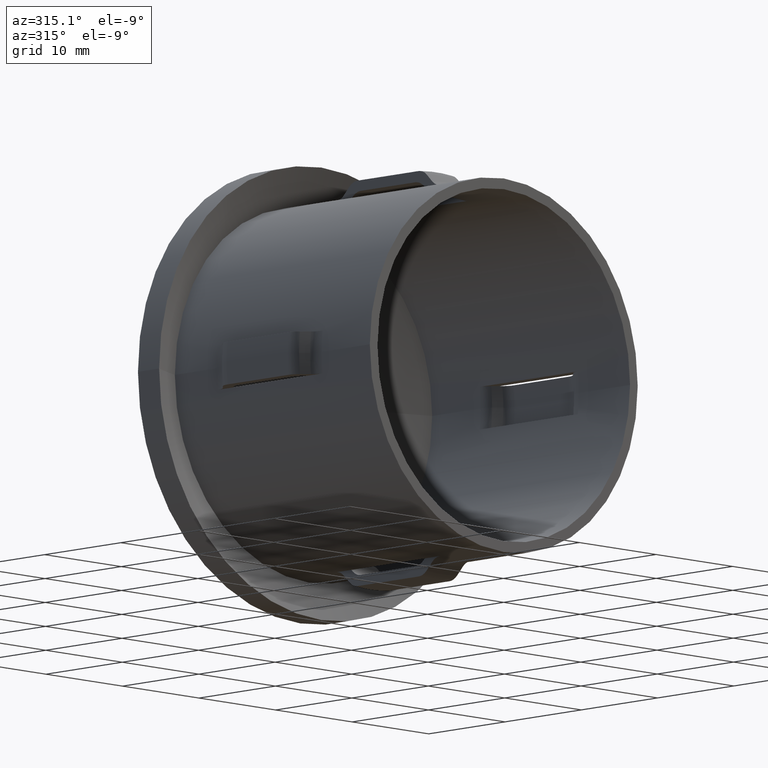
[diagram: clean part render]
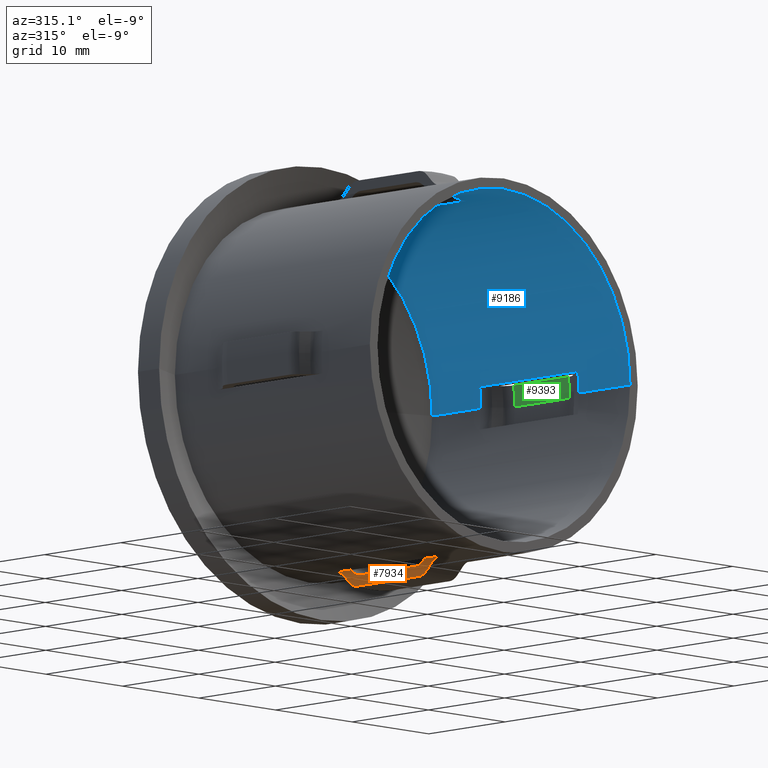
[diagram: same view with three faces highlighted in distinct colors, each labeled with its STEP entity id]
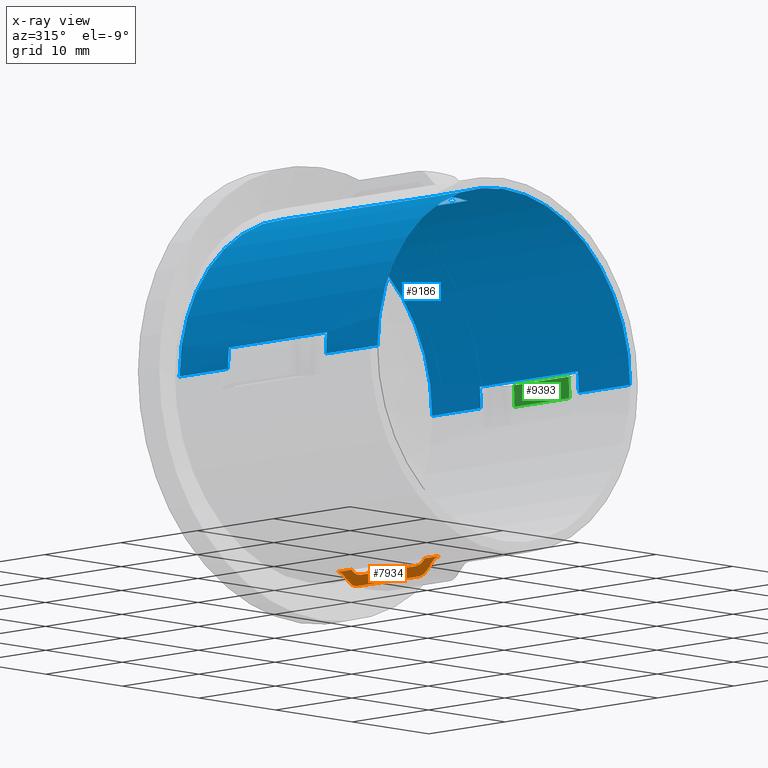
[diagram: x-ray of the same camera — body ghosted, the three highlighted faces saturated]
A machine part, auxiliary view with three faces highlighted in distinct colors.
The next image is the same camera in x-ray (body ghosted, the three faces saturated) — at least one of them is partly hidden behind the body in this view.
Their STEP definitions:

[orange] entity #7934 — the highlighted planar face has unit normal (-1, 0, -0).
#142 = CARTESIAN_POINT ( 'NONE',  ( -1.999999999999997300, 17.66617639867299500, -17.68556931965884600 ) ) ;
#319 = CARTESIAN_POINT ( 'NONE',  ( -1.999999999999997300, 17.86062099140061600, -17.48986456204517700 ) ) ;
#340 = B_SPLINE_CURVE_WITH_KNOTS ( 'NONE', 3,
 ( #2303, #3480, #12074, #1609, #5769, #12159, #472 ),
 .UNSPECIFIED., .F., .F.,
 ( 4, 3, 4 ),
 ( 0.002717514562751353200, 0.002881481620209133200, 0.003740695040385907800 ),
 .UNSPECIFIED. ) ;
#472 = CARTESIAN_POINT ( 'NONE',  ( -1.999999999999997300, 18.93933982822023800, -17.82750440954560000 ) ) ;
#527 = EDGE_CURVE ( 'NONE', #7886, #5952, #12152, .T. ) ;
#547 = DIRECTION ( 'NONE',  ( -2.449293598294745400E-017, -1.000000000000000000, -0.0000000000000000000 ) ) ;
#803 = ORIENTED_EDGE ( 'NONE', *, *, #6664, .F. ) ;
#865 = CARTESIAN_POINT ( 'NONE',  ( -1.999999999999997800, 9.179818459428762600, -17.95027609387195300 ) ) ;
#1187 = CARTESIAN_POINT ( 'NONE',  ( -1.999999999999997300, 6.511921298075495900, -17.38533865071377300 ) ) ;
#1213 = VERTEX_POINT ( 'NONE', #12375 ) ;
#1247 = VERTEX_POINT ( 'NONE', #13346 ) ;
#1524 = B_SPLINE_CURVE_WITH_KNOTS ( 'NONE', 3,
 ( #3696, #1603, #2654, #9957, #11065, #13122, #8875 ),
 .UNSPECIFIED., .F., .F.,
 ( 4, 3, 4 ),
 ( 0.002502640256380174500, 0.002881481711007974700, 0.003525820694122489300 ),
 .UNSPECIFIED. ) ;
#1603 = CARTESIAN_POINT ( 'NONE',  ( -1.999999999999997800, 7.464392951745988800, -17.91707696693311300 ) ) ;
#1609 = CARTESIAN_POINT ( 'NONE',  ( -1.999999999999997300, 18.33362423634514800, -18.43689454692427200 ) ) ;
#1630 = LINE ( 'NONE', #9995, #13504 ) ;
#1638 = VERTEX_POINT ( 'NONE', #3899 ) ;
#1702 = CARTESIAN_POINT ( 'NONE',  ( -1.999999999999997300, 19.07835158641513100, -17.68762060342850300 ) ) ;
#1881 = CARTESIAN_POINT ( 'NONE',  ( -1.999999999999997800, 8.510912703474037500, -17.54704868925519500 ) ) ;
#1993 = VERTEX_POINT ( 'NONE', #11931 ) ;
#2050 = VERTEX_POINT ( 'NONE', #4009 ) ;
#2298 = VERTEX_POINT ( 'NONE', #12782 ) ;
#2303 = CARTESIAN_POINT ( 'NONE',  ( -1.999999999999997300, 18.21801948466175200, -18.55317326083830700 ) ) ;
#2336 = EDGE_CURVE ( 'NONE', #8371, #10444, #12878, .T. ) ;
#2370 = B_SPLINE_CURVE_WITH_KNOTS ( 'NONE', 3,
 ( #11540, #3072, #12372, #9447, #5105, #8346 ),
 .UNSPECIFIED., .F., .F.,
 ( 4, 2, 4 ),
 ( 0.009058246311685884400, 0.009644235711769731000, 0.01023022511185357800 ),
 .UNSPECIFIED. ) ;
#2469 = ORIENTED_EDGE ( 'NONE', *, *, #9874, .F. ) ;
#2654 = CARTESIAN_POINT ( 'NONE',  ( -1.999999999999997800, 7.553411300389698500, -18.00664535620846600 ) ) ;
#2832 = CARTESIAN_POINT ( 'NONE',  ( -1.999999999999997300, 18.21801948466175200, -18.55317326083830700 ) ) ;
#2885 = CARTESIAN_POINT ( 'NONE',  ( -1.999999999999997800, 17.55228834799383000, -18.95497577591445900 ) ) ;
#2915 = EDGE_LOOP ( 'NONE', ( #5969, #10619, #7212, #6825, #2469, #4573, #7401, #10200, #10511, #9681, #6750, #4957, #8843, #803 ) ) ;
#2962 = CARTESIAN_POINT ( 'NONE',  ( -1.999999999999997800, 8.419481924227350000, -17.45502326312328400 ) ) ;
#3072 = CARTESIAN_POINT ( 'NONE',  ( -1.999999999999997300, 8.235885219230777200, -18.69316570677149900 ) ) ;
#3426 = EDGE_CURVE ( 'NONE', #2050, #1638, #340, .T. ) ;
#3427 = CARTESIAN_POINT ( 'NONE',  ( -1.999999999999997300, 17.80380592228749800, -17.54704868925516300 ) ) ;
#3480 = CARTESIAN_POINT ( 'NONE',  ( -1.999999999999997300, 18.25655510383300100, -18.51441438742118700 ) ) ;
#3616 = FACE_OUTER_BOUND ( 'NONE', #2915, .T. ) ;
#3692 = VERTEX_POINT ( 'NONE', #10656 ) ;
#3696 = CARTESIAN_POINT ( 'NONE',  ( -1.999999999999997800, 7.375378797541301000, -17.82750440954563900 ) ) ;
#3899 = CARTESIAN_POINT ( 'NONE',  ( -1.999999999999997300, 18.93933982822023800, -17.82750440954560000 ) ) ;
#4009 = CARTESIAN_POINT ( 'NONE',  ( -1.999999999999997300, 18.21801948466175200, -18.55317326083830700 ) ) ;
#4078 = CARTESIAN_POINT ( 'NONE',  ( -1.999999999999997800, 8.491974147298870800, -17.52798751203519200 ) ) ;
#4539 = EDGE_CURVE ( 'NONE', #6476, #3692, #2370, .T. ) ;
#4544 = CARTESIAN_POINT ( 'NONE',  ( -1.999999999999997300, 20.00000000000000000, -17.38533865071380500 ) ) ;
#4573 = ORIENTED_EDGE ( 'NONE', *, *, #12138, .F. ) ;
#4647 = CARTESIAN_POINT ( 'NONE',  ( -1.999999999999997800, 8.510912703474037500, -17.54704868925519500 ) ) ;
#4723 = B_SPLINE_CURVE_WITH_KNOTS ( 'NONE', 3,
 ( #9807, #12931, #8679, #319, #10797, #8446, #5483 ),
 .UNSPECIFIED., .F., .F.,
 ( 4, 3, 4 ),
 ( 0.001391506068155366600, 0.001538847408787444100, 0.001619457434272498100 ),
 .UNSPECIFIED. ) ;
#4919 = CARTESIAN_POINT ( 'NONE',  ( -1.999999999999997300, 17.35545052147437100, -18.99499934193212200 ) ) ;
#4957 = ORIENTED_EDGE ( 'NONE', *, *, #7402, .F. ) ;
#5105 = CARTESIAN_POINT ( 'NONE',  ( -1.999999999999997800, 8.961835131954593700, -18.99499934193213900 ) ) ;
#5113 = B_SPLINE_CURVE_WITH_KNOTS ( 'NONE', 3,
 ( #11185, #4919, #2885, #11359, #10267, #2832 ),
 .UNSPECIFIED., .F., .F.,
 ( 4, 2, 4 ),
 ( 0.009110308732903648500, 0.009696500257975483200, 0.01028269178304731800 ),
 .UNSPECIFIED. ) ;
#5368 = CARTESIAN_POINT ( 'NONE',  ( -1.999999999999997300, 8.096699141100950600, -18.55317326083740800 ) ) ;
#5483 = CARTESIAN_POINT ( 'NONE',  ( -1.999999999999997300, 17.80380592228749800, -17.54704868925516300 ) ) ;
#5525 = CARTESIAN_POINT ( 'NONE',  ( -1.999999999999998200, 6.707255492531323200, -17.42454143816082300 ) ) ;
#5538 = EDGE_CURVE ( 'NONE', #1213, #3692, #1630, .T. ) ;
#5722 = PLANE ( 'NONE',  #10632 ) ;
#5769 = CARTESIAN_POINT ( 'NONE',  ( -1.999999999999997300, 18.53554961556706400, -18.23378456336042300 ) ) ;
#5952 = VERTEX_POINT ( 'NONE', #7087 ) ;
#5969 = ORIENTED_EDGE ( 'NONE', *, *, #3426, .F. ) ;
#5974 = VECTOR ( 'NONE', #11989, 1000.000000000000000 ) ;
#6017 = CARTESIAN_POINT ( 'NONE',  ( -1.999999999999997300, 16.74314575050790700, -17.98916340467448900 ) ) ;
#6192 = CARTESIAN_POINT ( 'NONE',  ( -1.999999999999997800, 8.648696931519925400, -17.68572502575156600 ) ) ;
#6362 = EDGE_CURVE ( 'NONE', #11612, #2298, #12008, .T. ) ;
#6476 = VERTEX_POINT ( 'NONE', #5368 ) ;
#6664 = EDGE_CURVE ( 'NONE', #1638, #8371, #13508, .T. ) ;
#6750 = ORIENTED_EDGE ( 'NONE', *, *, #6961, .F. ) ;
#6825 = ORIENTED_EDGE ( 'NONE', *, *, #4539, .F. ) ;
#6902 = CARTESIAN_POINT ( 'NONE',  ( -1.999999999999997300, 18.93933982822023800, -17.82750440954560000 ) ) ;
#6941 = CARTESIAN_POINT ( 'NONE',  ( -1.999999999999997800, 19.80275522031461600, -17.38533865071373800 ) ) ;
#6961 = EDGE_CURVE ( 'NONE', #7448, #11612, #9808, .T. ) ;
#7087 = CARTESIAN_POINT ( 'NONE',  ( -1.999999999999997800, 8.350252531694247100, -17.38533865071380500 ) ) ;
#7133 = CARTESIAN_POINT ( 'NONE',  ( -1.999999999999997800, 8.454097634360859800, -17.48986456204514500 ) ) ;
#7212 = ORIENTED_EDGE ( 'NONE', *, *, #5538, .T. ) ;
#7401 = ORIENTED_EDGE ( 'NONE', *, *, #10132, .F. ) ;
#7402 = EDGE_CURVE ( 'NONE', #10444, #7448, #4723, .T. ) ;
#7448 = VERTEX_POINT ( 'NONE', #7835 ) ;
#7522 = CARTESIAN_POINT ( 'NONE',  ( -1.999999999999997300, 16.74314575050790700, -17.98916340467448900 ) ) ;
#7608 = B_SPLINE_CURVE_WITH_KNOTS ( 'NONE', 3,
 ( #8406, #10513, #865, #13446, #6192, #1881 ),
 .UNSPECIFIED., .F., .F.,
 ( 4, 2, 4 ),
 ( 0.008557415240390565600, 0.009143349752370274000, 0.009729284264349982400 ),
 .UNSPECIFIED. ) ;
#7632 = CARTESIAN_POINT ( 'NONE',  ( -1.999999999999997300, 20.00000000000000000, -17.38533865071380500 ) ) ;
#7704 = CARTESIAN_POINT ( 'NONE',  ( -1.999999999999997800, 16.93896679461473600, -17.98916340467229300 ) ) ;
#7784 = DIRECTION ( 'NONE',  ( -2.449293598294745400E-017, -1.000000000000000000, -0.0000000000000000000 ) ) ;
#7835 = CARTESIAN_POINT ( 'NONE',  ( -1.999999999999997300, 17.80380592228749800, -17.54704868925516300 ) ) ;
#7886 = VERTEX_POINT ( 'NONE', #4647 ) ;
#7934 = ADVANCED_FACE ( 'NONE', ( #3616 ), #5722, .T. ) ;
#8163 = DIRECTION ( 'NONE',  ( -2.904862207577519400E-015, -1.000000000000000000, -0.0000000000000000000 ) ) ;
#8346 = CARTESIAN_POINT ( 'NONE',  ( -1.999999999999997800, 9.157359312880760900, -18.99499934193216400 ) ) ;
#8371 = VERTEX_POINT ( 'NONE', #4544 ) ;
#8406 = CARTESIAN_POINT ( 'NONE',  ( -2.000000000000052800, 9.571572875253807000, -17.98916340467231500 ) ) ;
#8446 = CARTESIAN_POINT ( 'NONE',  ( -1.999999999999997300, 17.82274447846264600, -17.52798751203518500 ) ) ;
#8586 = CARTESIAN_POINT ( 'NONE',  ( -1.999999999999997100, 7.071031530395205600, -17.57632696097569500 ) ) ;
#8630 = CARTESIAN_POINT ( 'NONE',  ( -1.999999999999997800, 7.375378797541301000, -17.82750440954563900 ) ) ;
#8677 = CARTESIAN_POINT ( 'NONE',  ( -1.999999999999997800, 7.236001098021193700, -17.68725236648188900 ) ) ;
#8679 = CARTESIAN_POINT ( 'NONE',  ( -1.999999999999997300, 17.89523670153413400, -17.45502326312330500 ) ) ;
#8843 = ORIENTED_EDGE ( 'NONE', *, *, #2336, .F. ) ;
#8875 = CARTESIAN_POINT ( 'NONE',  ( -1.999999999999997300, 8.096699141100950600, -18.55317326083740800 ) ) ;
#8964 = DIRECTION ( 'NONE',  ( -1.000000000000000000, 2.449293598294745400E-017, -7.655443703210460400E-017 ) ) ;
#9009 = CARTESIAN_POINT ( 'NONE',  ( -1.999999999999998700, 20.00000000000000000, -1.531088740642091600E-016 ) ) ;
#9111 = CARTESIAN_POINT ( 'NONE',  ( -1.999999999999997300, 20.00000000000000000, -17.38533865071380500 ) ) ;
#9300 = CARTESIAN_POINT ( 'NONE',  ( -1.999999999999997800, 8.473035790276684400, -17.50892613694125900 ) ) ;
#9344 = CARTESIAN_POINT ( 'NONE',  ( -1.999999999999997800, 8.510912703474037500, -17.54704868925519500 ) ) ;
#9447 = CARTESIAN_POINT ( 'NONE',  ( -1.999999999999997300, 8.764459677352842700, -18.95551127229821000 ) ) ;
#9681 = ORIENTED_EDGE ( 'NONE', *, *, #6362, .F. ) ;
#9807 = CARTESIAN_POINT ( 'NONE',  ( -1.999999999999997300, 17.96446609406725900, -17.38533865071380500 ) ) ;
#9808 = B_SPLINE_CURVE_WITH_KNOTS ( 'NONE', 3,
 ( #3427, #142, #10846, #12891, #7704, #7522 ),
 .UNSPECIFIED., .F., .F.,
 ( 4, 2, 4 ),
 ( 0.008379490991793154400, 0.008965262327657017700, 0.009551033663520881000 ),
 .UNSPECIFIED. ) ;
#9867 = DIRECTION ( 'NONE',  ( -7.655443703210460400E-017, 0.0000000000000000000, 1.000000000000000000 ) ) ;
#9874 = EDGE_CURVE ( 'NONE', #1993, #6476, #1524, .T. ) ;
#9957 = CARTESIAN_POINT ( 'NONE',  ( -1.999999999999997800, 7.642433659921811000, -18.09620975867419900 ) ) ;
#9995 = CARTESIAN_POINT ( 'NONE',  ( -1.999999999999997300, 20.00000000000000000, -18.99499934193216400 ) ) ;
#10056 = EDGE_CURVE ( 'NONE', #2298, #7886, #7608, .T. ) ;
#10132 = EDGE_CURVE ( 'NONE', #5952, #1247, #10835, .T. ) ;
#10195 = CARTESIAN_POINT ( 'NONE',  ( -1.999999999999997300, 19.60781667816409900, -17.42437800737897600 ) ) ;
#10200 = ORIENTED_EDGE ( 'NONE', *, *, #527, .F. ) ;
#10267 = CARTESIAN_POINT ( 'NONE',  ( -1.999999999999997800, 18.07980049139986500, -18.69219301914309000 ) ) ;
#10294 = CARTESIAN_POINT ( 'NONE',  ( -1.999999999999997800, 8.350252531694247100, -17.38533865071380500 ) ) ;
#10341 = CARTESIAN_POINT ( 'NONE',  ( -1.999999999999997800, 8.384866885954853200, -17.42018129667720300 ) ) ;
#10444 = VERTEX_POINT ( 'NONE', #10496 ) ;
#10496 = CARTESIAN_POINT ( 'NONE',  ( -1.999999999999997300, 17.96446609406725900, -17.38533865071380500 ) ) ;
#10511 = ORIENTED_EDGE ( 'NONE', *, *, #10056, .F. ) ;
#10513 = CARTESIAN_POINT ( 'NONE',  ( -1.999999999999997300, 9.374426846787924800, -17.98916340467233300 ) ) ;
#10619 = ORIENTED_EDGE ( 'NONE', *, *, #12773, .F. ) ;
#10632 = AXIS2_PLACEMENT_3D ( 'NONE', #9009, #8964, #9867 ) ;
#10656 = CARTESIAN_POINT ( 'NONE',  ( -1.999999999999997800, 9.157359312880760900, -18.99499934193216400 ) ) ;
#10745 = CARTESIAN_POINT ( 'NONE',  ( -1.999999999999997800, 6.314718625761422300, -17.38533865071380500 ) ) ;
#10797 = CARTESIAN_POINT ( 'NONE',  ( -1.999999999999997300, 17.84168283548481100, -17.50892613694127300 ) ) ;
#10835 = LINE ( 'NONE', #10881, #13458 ) ;
#10846 = CARTESIAN_POINT ( 'NONE',  ( -1.999999999999997800, 17.49967531331978400, -17.79791893002652600 ) ) ;
#10881 = CARTESIAN_POINT ( 'NONE',  ( -1.999999999999997300, 20.00000000000000000, -17.38533865071380500 ) ) ;
#11065 = CARTESIAN_POINT ( 'NONE',  ( -1.999999999999997800, 7.793844166108023300, -18.24854217925793200 ) ) ;
#11185 = CARTESIAN_POINT ( 'NONE',  ( -1.999999999999997300, 17.15735931288071100, -18.99499934193216400 ) ) ;
#11359 = CARTESIAN_POINT ( 'NONE',  ( -1.999999999999997300, 17.91300552684631600, -18.80433843613714700 ) ) ;
#11513 = VECTOR ( 'NONE', #8163, 1000.000000000000000 ) ;
#11540 = CARTESIAN_POINT ( 'NONE',  ( -1.999999999999997300, 8.096699141100950600, -18.55317326083740800 ) ) ;
#11612 = VERTEX_POINT ( 'NONE', #6017 ) ;
#11849 = B_SPLINE_CURVE_WITH_KNOTS ( 'NONE', 3,
 ( #10745, #1187, #5525, #8586, #8677, #8630 ),
 .UNSPECIFIED., .F., .F.,
 ( 4, 2, 4 ),
 ( 0.009260882988404802200, 0.009847264564994236800, 0.01043364614158367000 ),
 .UNSPECIFIED. ) ;
#11931 = CARTESIAN_POINT ( 'NONE',  ( -1.999999999999997800, 7.375378797541301000, -17.82750440954563900 ) ) ;
#11989 = DIRECTION ( 'NONE',  ( -2.449293598294745400E-017, -1.000000000000000000, -0.0000000000000000000 ) ) ;
#12008 = LINE ( 'NONE', #13294, #11513 ) ;
#12074 = CARTESIAN_POINT ( 'NONE',  ( -1.999999999999997300, 18.29509002547514700, -18.47565482047983600 ) ) ;
#12138 = EDGE_CURVE ( 'NONE', #1247, #1993, #11849, .T. ) ;
#12152 = B_SPLINE_CURVE_WITH_KNOTS ( 'NONE', 3,
 ( #9344, #4078, #9300, #7133, #2962, #10341, #10294 ),
 .UNSPECIFIED., .F., .F.,
 ( 4, 3, 4 ),
 ( 0.001458237375091891600, 0.001538847400985722100, 0.001686188742364757300 ),
 .UNSPECIFIED. ) ;
#12159 = CARTESIAN_POINT ( 'NONE',  ( -1.999999999999997300, 18.73745550058199800, -18.03065519701952700 ) ) ;
#12254 = CARTESIAN_POINT ( 'NONE',  ( -1.999999999999997800, 19.24312840865503200, -17.57657599610206100 ) ) ;
#12372 = CARTESIAN_POINT ( 'NONE',  ( -1.999999999999997800, 8.403729032305321300, -18.80548881121025700 ) ) ;
#12375 = CARTESIAN_POINT ( 'NONE',  ( -1.999999999999997300, 17.15735931288071100, -18.99499934193216400 ) ) ;
#12773 = EDGE_CURVE ( 'NONE', #1213, #2050, #5113, .T. ) ;
#12782 = CARTESIAN_POINT ( 'NONE',  ( -2.000000000000052800, 9.571572875253807000, -17.98916340467231500 ) ) ;
#12878 = LINE ( 'NONE', #7632, #5974 ) ;
#12891 = CARTESIAN_POINT ( 'NONE',  ( -1.999999999999997300, 17.13839461924656100, -17.94907361992870100 ) ) ;
#12931 = CARTESIAN_POINT ( 'NONE',  ( -1.999999999999997300, 17.92985173980664400, -17.42018129667721700 ) ) ;
#13122 = CARTESIAN_POINT ( 'NONE',  ( -1.999999999999997300, 7.945266271175104800, -18.40086307191202100 ) ) ;
#13294 = CARTESIAN_POINT ( 'NONE',  ( -1.999999999999997100, 28.89999999999999500, -17.98916340467231500 ) ) ;
#13346 = CARTESIAN_POINT ( 'NONE',  ( -1.999999999999997800, 6.314718625761422300, -17.38533865071380500 ) ) ;
#13446 = CARTESIAN_POINT ( 'NONE',  ( -1.999999999999997300, 8.814874382095519300, -17.79810545226449400 ) ) ;
#13458 = VECTOR ( 'NONE', #7784, 1000.000000000000000 ) ;
#13504 = VECTOR ( 'NONE', #547, 1000.000000000000000 ) ;
#13508 = B_SPLINE_CURVE_WITH_KNOTS ( 'NONE', 3,
 ( #6902, #1702, #12254, #10195, #6941, #9111 ),
 .UNSPECIFIED., .F., .F.,
 ( 4, 2, 4 ),
 ( 0.009288462586615883400, 0.009874882560755880700, 0.01046130253489587800 ),
 .UNSPECIFIED. ) ;

[blue] entity #9186 — the highlighted cylindrical surface (partial cylindrical patch) has radius 16.5 mm, axis along (-0, -1, -0).
#84 = LINE ( 'NONE', #207, #2383 ) ;
#126 = VERTEX_POINT ( 'NONE', #11928 ) ;
#161 = EDGE_CURVE ( 'NONE', #671, #9048, #10293, .T. ) ;
#207 = CARTESIAN_POINT ( 'NONE',  ( -16.50000000000001400, 28.90000000000004500, 2.020667218593134700E-015 ) ) ;
#271 = CARTESIAN_POINT ( 'NONE',  ( -6.440389698832633000E-014, 6.728932188134556300, 0.0000000000000000000 ) ) ;
#409 = EDGE_CURVE ( 'NONE', #3163, #10684, #4510, .T. ) ;
#530 = AXIS2_PLACEMENT_3D ( 'NONE', #9121, #2632, #10024 ) ;
#609 = VERTEX_POINT ( 'NONE', #11655 ) ;
#657 = CARTESIAN_POINT ( 'NONE',  ( 1.999999999999952700, 6.728932188134550100, 16.37833935415926200 ) ) ;
#671 = VERTEX_POINT ( 'NONE', #3336 ) ;
#823 = ORIENTED_EDGE ( 'NONE', *, *, #1724, .F. ) ;
#866 = CIRCLE ( 'NONE', #530, 16.50000000000002800 ) ;
#910 = VERTEX_POINT ( 'NONE', #13404 ) ;
#966 = DIRECTION ( 'NONE',  ( 1.000000000000000000, -2.943773171354576700E-015, 0.0000000000000000000 ) ) ;
#1062 = CARTESIAN_POINT ( 'NONE',  ( 16.50000000000001400, 28.89999999999994500, 0.0000000000000000000 ) ) ;
#1458 = DIRECTION ( 'NONE',  ( 1.000000000000000000, -2.891205793294667200E-015, 0.0000000000000000000 ) ) ;
#1515 = EDGE_CURVE ( 'NONE', #10684, #126, #866, .T. ) ;
#1578 = DIRECTION ( 'NONE',  ( -2.904862207577519400E-015, -1.000000000000000000, -0.0000000000000000000 ) ) ;
#1699 = AXIS2_PLACEMENT_3D ( 'NONE', #271, #2504, #3590 ) ;
#1724 = EDGE_CURVE ( 'NONE', #11598, #7661, #9609, .T. ) ;
#1763 = DIRECTION ( 'NONE',  ( -2.904862207577519400E-015, -1.000000000000000000, -0.0000000000000000000 ) ) ;
#2210 = CARTESIAN_POINT ( 'NONE',  ( -8.395051779899015700E-014, 4.857225732735059900E-014, 0.0000000000000000000 ) ) ;
#2288 = ORIENTED_EDGE ( 'NONE', *, *, #12522, .T. ) ;
#2383 = VECTOR ( 'NONE', #9878, 1000.000000000000000 ) ;
#2479 = ORIENTED_EDGE ( 'NONE', *, *, #409, .T. ) ;
#2504 = DIRECTION ( 'NONE',  ( -2.904862207577519400E-015, -1.000000000000000000, -0.0000000000000000000 ) ) ;
#2632 = DIRECTION ( 'NONE',  ( -2.904862207577519400E-015, -1.000000000000000000, -0.0000000000000000000 ) ) ;
#2635 = CARTESIAN_POINT ( 'NONE',  ( -1.999999999999997800, 19.58578643762693600, 16.37833935415929100 ) ) ;
#2657 = CARTESIAN_POINT ( 'NONE',  ( -16.37833935415936500, 20.00000000000000000, 1.999999999999995800 ) ) ;
#2740 = VERTEX_POINT ( 'NONE', #5008 ) ;
#2784 = DIRECTION ( 'NONE',  ( -2.449293598294745400E-017, -1.000000000000000000, 0.0000000000000000000 ) ) ;
#3130 = CARTESIAN_POINT ( 'NONE',  ( -16.50000000000005700, 19.58578643762700400, 2.020667218593136600E-015 ) ) ;
#3163 = VERTEX_POINT ( 'NONE', #4995 ) ;
#3183 = AXIS2_PLACEMENT_3D ( 'NONE', #3207, #10440, #4260 ) ;
#3207 = CARTESIAN_POINT ( 'NONE',  ( -6.440389698832633000E-014, 6.728932188134556300, 0.0000000000000000000 ) ) ;
#3221 = VERTEX_POINT ( 'NONE', #13321 ) ;
#3229 = DIRECTION ( 'NONE',  ( -2.904862207577519400E-015, -1.000000000000000000, -0.0000000000000000000 ) ) ;
#3336 = CARTESIAN_POINT ( 'NONE',  ( 16.49999999999999600, 6.420309023212971100E-016, 0.0000000000000000000 ) ) ;
#3458 = LINE ( 'NONE', #10084, #8745 ) ;
#3503 = CARTESIAN_POINT ( 'NONE',  ( -6.440389698832633000E-014, 6.728932188134556300, 0.0000000000000000000 ) ) ;
#3536 = VECTOR ( 'NONE', #1578, 1000.000000000000000 ) ;
#3590 = DIRECTION ( 'NONE',  ( 1.000000000000000000, -2.891205793294667200E-015, 0.0000000000000000000 ) ) ;
#3622 = CARTESIAN_POINT ( 'NONE',  ( 16.50000000000000000, 19.58578643762690800, 0.0000000000000000000 ) ) ;
#3866 = CARTESIAN_POINT ( 'NONE',  ( 0.0000000000000000000, 28.89999999999999500, 0.0000000000000000000 ) ) ;
#3889 = LINE ( 'NONE', #2657, #11139 ) ;
#3939 = DIRECTION ( 'NONE',  ( -2.449293598294745400E-017, -1.000000000000000000, 0.0000000000000000000 ) ) ;
#4044 = AXIS2_PLACEMENT_3D ( 'NONE', #3503, #8814, #1458 ) ;
#4085 = CIRCLE ( 'NONE', #10465, 16.50000000000002800 ) ;
#4142 = CARTESIAN_POINT ( 'NONE',  ( 16.37833935415919800, 20.00000000000000000, 1.999999999999995800 ) ) ;
#4260 = DIRECTION ( 'NONE',  ( 1.000000000000000000, -2.891205793294667200E-015, 0.0000000000000000000 ) ) ;
#4510 = LINE ( 'NONE', #8099, #3536 ) ;
#4516 = LINE ( 'NONE', #4142, #5344 ) ;
#4532 = VECTOR ( 'NONE', #3939, 1000.000000000000000 ) ;
#4865 = ORIENTED_EDGE ( 'NONE', *, *, #11184, .F. ) ;
#4995 = CARTESIAN_POINT ( 'NONE',  ( 16.49999999999999300, 25.94211490264017800, -2.020667218593116900E-015 ) ) ;
#5008 = CARTESIAN_POINT ( 'NONE',  ( -16.49999999999987600, 25.94211490264027000, 0.0000000000000000000 ) ) ;
#5009 = AXIS2_PLACEMENT_3D ( 'NONE', #5215, #7300, #966 ) ;
#5136 = EDGE_LOOP ( 'NONE', ( #10177, #6780, #823, #7780 ) ) ;
#5215 = CARTESIAN_POINT ( 'NONE',  ( -2.705650697064341700E-014, 19.58578643762695700, 0.0000000000000000000 ) ) ;
#5266 = CARTESIAN_POINT ( 'NONE',  ( -2.705650697064341700E-014, 19.58578643762695700, 0.0000000000000000000 ) ) ;
#5344 = VECTOR ( 'NONE', #10449, 1000.000000000000000 ) ;
#5363 = ORIENTED_EDGE ( 'NONE', *, *, #11520, .F. ) ;
#5631 = ORIENTED_EDGE ( 'NONE', *, *, #10212, .F. ) ;
#5767 = DIRECTION ( 'NONE',  ( -2.449293598294745400E-017, -1.000000000000000000, 0.0000000000000000000 ) ) ;
#5817 = CARTESIAN_POINT ( 'NONE',  ( 2.000000000000001800, 20.00000000000000000, 16.37833935415926900 ) ) ;
#5861 = LINE ( 'NONE', #1062, #10143 ) ;
#6103 = CARTESIAN_POINT ( 'NONE',  ( -16.37833935415925500, 19.58578643762700400, 1.999999999999994000 ) ) ;
#6344 = DIRECTION ( 'NONE',  ( -2.904862207577519400E-015, -1.000000000000000000, -0.0000000000000000000 ) ) ;
#6365 = EDGE_CURVE ( 'NONE', #10368, #7661, #3458, .T. ) ;
#6511 = CIRCLE ( 'NONE', #5009, 16.50000000000002800 ) ;
#6780 = ORIENTED_EDGE ( 'NONE', *, *, #6365, .T. ) ;
#7096 = VERTEX_POINT ( 'NONE', #9908 ) ;
#7156 = ORIENTED_EDGE ( 'NONE', *, *, #12988, .F. ) ;
#7300 = DIRECTION ( 'NONE',  ( -2.904862207577519400E-015, -1.000000000000000000, -0.0000000000000000000 ) ) ;
#7355 = LINE ( 'NONE', #13336, #8515 ) ;
#7500 = AXIS2_PLACEMENT_3D ( 'NONE', #2210, #9688, #12763 ) ;
#7661 = VERTEX_POINT ( 'NONE', #13387 ) ;
#7706 = CYLINDRICAL_SURFACE ( 'NONE', #13610, 16.50000000000001400 ) ;
#7780 = ORIENTED_EDGE ( 'NONE', *, *, #11558, .F. ) ;
#8099 = CARTESIAN_POINT ( 'NONE',  ( 16.50000000000001400, 28.89999999999994500, 0.0000000000000000000 ) ) ;
#8193 = AXIS2_PLACEMENT_3D ( 'NONE', #10424, #3229, #10516 ) ;
#8244 = VERTEX_POINT ( 'NONE', #9669 ) ;
#8515 = VECTOR ( 'NONE', #1763, 1000.000000000000000 ) ;
#8573 = EDGE_LOOP ( 'NONE', ( #4865, #9522, #2479, #10676, #2288, #7156, #13270, #10518, #5363, #5631, #11038, #12106 ) ) ;
#8745 = VECTOR ( 'NONE', #2784, 1000.000000000000000 ) ;
#8814 = DIRECTION ( 'NONE',  ( -2.904862207577519400E-015, -1.000000000000000000, -0.0000000000000000000 ) ) ;
#9048 = VERTEX_POINT ( 'NONE', #13247 ) ;
#9121 = CARTESIAN_POINT ( 'NONE',  ( -2.705650697064341700E-014, 19.58578643762695700, 0.0000000000000000000 ) ) ;
#9186 = ADVANCED_FACE ( 'NONE', ( #10519, #12144 ), #7706, .F. ) ;
#9484 = CIRCLE ( 'NONE', #4044, 16.50000000000006400 ) ;
#9522 = ORIENTED_EDGE ( 'NONE', *, *, #12047, .F. ) ;
#9609 = CIRCLE ( 'NONE', #3183, 16.50000000000006400 ) ;
#9669 = CARTESIAN_POINT ( 'NONE',  ( -16.50000000000012800, 6.728932188134604300, 2.020667218593143000E-015 ) ) ;
#9674 = EDGE_CURVE ( 'NONE', #3221, #10368, #4085, .T. ) ;
#9688 = DIRECTION ( 'NONE',  ( -2.904862207577519400E-015, -1.000000000000000000, -0.0000000000000000000 ) ) ;
#9878 = DIRECTION ( 'NONE',  ( -2.904862207577519400E-015, -1.000000000000000000, -0.0000000000000000000 ) ) ;
#9908 = CARTESIAN_POINT ( 'NONE',  ( 16.49999999999999600, 6.728932188134509200, 0.0000000000000000000 ) ) ;
#10022 = VERTEX_POINT ( 'NONE', #6103 ) ;
#10024 = DIRECTION ( 'NONE',  ( 1.000000000000000000, -2.943773171354576700E-015, 0.0000000000000000000 ) ) ;
#10065 = VERTEX_POINT ( 'NONE', #3130 ) ;
#10084 = CARTESIAN_POINT ( 'NONE',  ( -1.999999999999997800, 20.00000000000000000, 16.37833935415929100 ) ) ;
#10143 = VECTOR ( 'NONE', #10432, 1000.000000000000000 ) ;
#10177 = ORIENTED_EDGE ( 'NONE', *, *, #9674, .T. ) ;
#10212 = EDGE_CURVE ( 'NONE', #609, #8244, #13121, .T. ) ;
#10293 = CIRCLE ( 'NONE', #7500, 16.50000000000008200 ) ;
#10368 = VERTEX_POINT ( 'NONE', #2635 ) ;
#10424 = CARTESIAN_POINT ( 'NONE',  ( -8.592248633677158500E-015, 25.94211490264022000, 0.0000000000000000000 ) ) ;
#10432 = DIRECTION ( 'NONE',  ( -2.904862207577519400E-015, -1.000000000000000000, -0.0000000000000000000 ) ) ;
#10440 = DIRECTION ( 'NONE',  ( -2.904862207577519400E-015, -1.000000000000000000, -0.0000000000000000000 ) ) ;
#10449 = DIRECTION ( 'NONE',  ( -2.449293598294745400E-017, -1.000000000000000000, 0.0000000000000000000 ) ) ;
#10465 = AXIS2_PLACEMENT_3D ( 'NONE', #5266, #6344, #10480 ) ;
#10480 = DIRECTION ( 'NONE',  ( 1.000000000000000000, -2.943773171354576700E-015, 0.0000000000000000000 ) ) ;
#10516 = DIRECTION ( 'NONE',  ( 1.000000000000000000, -2.943773171354581800E-015, 0.0000000000000000000 ) ) ;
#10518 = ORIENTED_EDGE ( 'NONE', *, *, #161, .T. ) ;
#10519 = FACE_OUTER_BOUND ( 'NONE', #8573, .T. ) ;
#10650 = LINE ( 'NONE', #5817, #4532 ) ;
#10676 = ORIENTED_EDGE ( 'NONE', *, *, #1515, .T. ) ;
#10684 = VERTEX_POINT ( 'NONE', #3622 ) ;
#11038 = ORIENTED_EDGE ( 'NONE', *, *, #11857, .F. ) ;
#11139 = VECTOR ( 'NONE', #5767, 1000.000000000000000 ) ;
#11184 = EDGE_CURVE ( 'NONE', #2740, #10065, #7355, .T. ) ;
#11225 = DIRECTION ( 'NONE',  ( -2.904862207577519400E-015, -1.000000000000000000, -0.0000000000000000000 ) ) ;
#11520 = EDGE_CURVE ( 'NONE', #8244, #9048, #84, .T. ) ;
#11558 = EDGE_CURVE ( 'NONE', #3221, #11598, #10650, .T. ) ;
#11598 = VERTEX_POINT ( 'NONE', #657 ) ;
#11655 = CARTESIAN_POINT ( 'NONE',  ( -16.37833935415936500, 6.728932188134577600, 1.999999999999995800 ) ) ;
#11714 = EDGE_CURVE ( 'NONE', #7096, #671, #5861, .T. ) ;
#11857 = EDGE_CURVE ( 'NONE', #10022, #609, #3889, .T. ) ;
#11928 = CARTESIAN_POINT ( 'NONE',  ( 16.37833935415920200, 19.58578643762690800, 2.000000000000000400 ) ) ;
#12047 = EDGE_CURVE ( 'NONE', #3163, #2740, #12770, .T. ) ;
#12106 = ORIENTED_EDGE ( 'NONE', *, *, #13229, .T. ) ;
#12144 = FACE_BOUND ( 'NONE', #5136, .T. ) ;
#12455 = DIRECTION ( 'NONE',  ( 1.000000000000000000, -2.943773171354579000E-015, 0.0000000000000000000 ) ) ;
#12522 = EDGE_CURVE ( 'NONE', #126, #910, #4516, .T. ) ;
#12763 = DIRECTION ( 'NONE',  ( 1.000000000000000000, -2.904862207577519000E-015, 0.0000000000000000000 ) ) ;
#12770 = CIRCLE ( 'NONE', #8193, 16.50000000000000000 ) ;
#12988 = EDGE_CURVE ( 'NONE', #7096, #910, #9484, .T. ) ;
#13121 = CIRCLE ( 'NONE', #1699, 16.50000000000006400 ) ;
#13229 = EDGE_CURVE ( 'NONE', #10022, #10065, #6511, .T. ) ;
#13247 = CARTESIAN_POINT ( 'NONE',  ( -16.50000000000016300, 9.650248375237989400E-014, 2.020667218593147300E-015 ) ) ;
#13270 = ORIENTED_EDGE ( 'NONE', *, *, #11714, .T. ) ;
#13321 = CARTESIAN_POINT ( 'NONE',  ( 2.000000000000001800, 19.58578643762692900, 16.37833935415926900 ) ) ;
#13336 = CARTESIAN_POINT ( 'NONE',  ( -16.50000000000001400, 28.90000000000004500, 2.020667218593134700E-015 ) ) ;
#13387 = CARTESIAN_POINT ( 'NONE',  ( -2.000000000000058600, 6.728932188134562500, 16.37833935415926600 ) ) ;
#13404 = CARTESIAN_POINT ( 'NONE',  ( 16.37833935415919500, 6.728932188134509200, 2.000000000000000000 ) ) ;
#13610 = AXIS2_PLACEMENT_3D ( 'NONE', #3866, #11225, #12455 ) ;

[green] entity #9393 — the highlighted cylindrical surface (partial cylindrical patch) has radius 18.1 mm, axis along (-0, -1, -0).
#162 = DIRECTION ( 'NONE',  ( 1.000000000000000000, -2.875232280624534400E-015, 0.0000000000000000000 ) ) ;
#185 = AXIS2_PLACEMENT_3D ( 'NONE', #1354, #5600, #6676 ) ;
#261 = ORIENTED_EDGE ( 'NONE', *, *, #3325, .F. ) ;
#807 = AXIS2_PLACEMENT_3D ( 'NONE', #5498, #8695, #12996 ) ;
#1033 = VERTEX_POINT ( 'NONE', #4602 ) ;
#1050 = CARTESIAN_POINT ( 'NONE',  ( 18.10000000000004800, 28.89999999999994200, 0.0000000000000000000 ) ) ;
#1354 = CARTESIAN_POINT ( 'NONE',  ( -5.614641748659127400E-014, 9.571572875253856700, 0.0000000000000000000 ) ) ;
#2905 = ORIENTED_EDGE ( 'NONE', *, *, #10857, .T. ) ;
#2988 = VERTEX_POINT ( 'NONE', #9740 ) ;
#2999 = VERTEX_POINT ( 'NONE', #10865 ) ;
#3069 = EDGE_CURVE ( 'NONE', #2999, #1033, #6148, .T. ) ;
#3218 = AXIS2_PLACEMENT_3D ( 'NONE', #5507, #6634, #162 ) ;
#3325 = EDGE_CURVE ( 'NONE', #2988, #5709, #8949, .T. ) ;
#3952 = ORIENTED_EDGE ( 'NONE', *, *, #3069, .T. ) ;
#4244 = CYLINDRICAL_SURFACE ( 'NONE', #3218, 18.10000000000004800 ) ;
#4602 = CARTESIAN_POINT ( 'NONE',  ( 17.98916340467226100, 9.571572875253803400, 1.999999999999994900 ) ) ;
#4972 = CARTESIAN_POINT ( 'NONE',  ( 17.98916340467444600, 16.74314575050784600, 1.999999999999994900 ) ) ;
#5498 = CARTESIAN_POINT ( 'NONE',  ( -3.531398647237842200E-014, 16.74314575050767200, 0.0000000000000000000 ) ) ;
#5507 = CARTESIAN_POINT ( 'NONE',  ( 0.0000000000000000000, 28.89999999999999500, 0.0000000000000000000 ) ) ;
#5600 = DIRECTION ( 'NONE',  ( -2.904862207577519400E-015, -1.000000000000000000, -0.0000000000000000000 ) ) ;
#5709 = VERTEX_POINT ( 'NONE', #4972 ) ;
#6148 = CIRCLE ( 'NONE', #185, 18.10000000000005800 ) ;
#6634 = DIRECTION ( 'NONE',  ( -2.904862207577519400E-015, -1.000000000000000000, -0.0000000000000000000 ) ) ;
#6676 = DIRECTION ( 'NONE',  ( 1.000000000000000000, -2.875232280624532900E-015, 0.0000000000000000000 ) ) ;
#6885 = VECTOR ( 'NONE', #8175, 1000.000000000000000 ) ;
#8175 = DIRECTION ( 'NONE',  ( 2.904862207577519400E-015, 1.000000000000000000, 0.0000000000000000000 ) ) ;
#8449 = DIRECTION ( 'NONE',  ( -2.904862207577519400E-015, -1.000000000000000000, -0.0000000000000000000 ) ) ;
#8695 = DIRECTION ( 'NONE',  ( -2.904862207577519400E-015, -1.000000000000000000, -0.0000000000000000000 ) ) ;
#8949 = CIRCLE ( 'NONE', #807, 18.10000000000003700 ) ;
#9393 = ADVANCED_FACE ( 'NONE', ( #9521 ), #4244, .F. ) ;
#9521 = FACE_OUTER_BOUND ( 'NONE', #12353, .T. ) ;
#9740 = CARTESIAN_POINT ( 'NONE',  ( 18.10000000000000100, 16.74314575050761900, 0.0000000000000000000 ) ) ;
#9910 = EDGE_CURVE ( 'NONE', #1033, #5709, #11636, .T. ) ;
#10640 = ORIENTED_EDGE ( 'NONE', *, *, #9910, .T. ) ;
#10857 = EDGE_CURVE ( 'NONE', #2988, #2999, #12286, .T. ) ;
#10865 = CARTESIAN_POINT ( 'NONE',  ( 18.10000000000000100, 9.571572875253803400, 0.0000000000000000000 ) ) ;
#11636 = LINE ( 'NONE', #13399, #6885 ) ;
#11774 = VECTOR ( 'NONE', #8449, 1000.000000000000000 ) ;
#12286 = LINE ( 'NONE', #1050, #11774 ) ;
#12353 = EDGE_LOOP ( 'NONE', ( #261, #2905, #3952, #10640 ) ) ;
#12996 = DIRECTION ( 'NONE',  ( 1.000000000000000000, -2.875232280624536400E-015, 0.0000000000000000000 ) ) ;
#13399 = CARTESIAN_POINT ( 'NONE',  ( 17.98916340467231500, 28.89999999999994200, 1.999999999999994900 ) ) ;